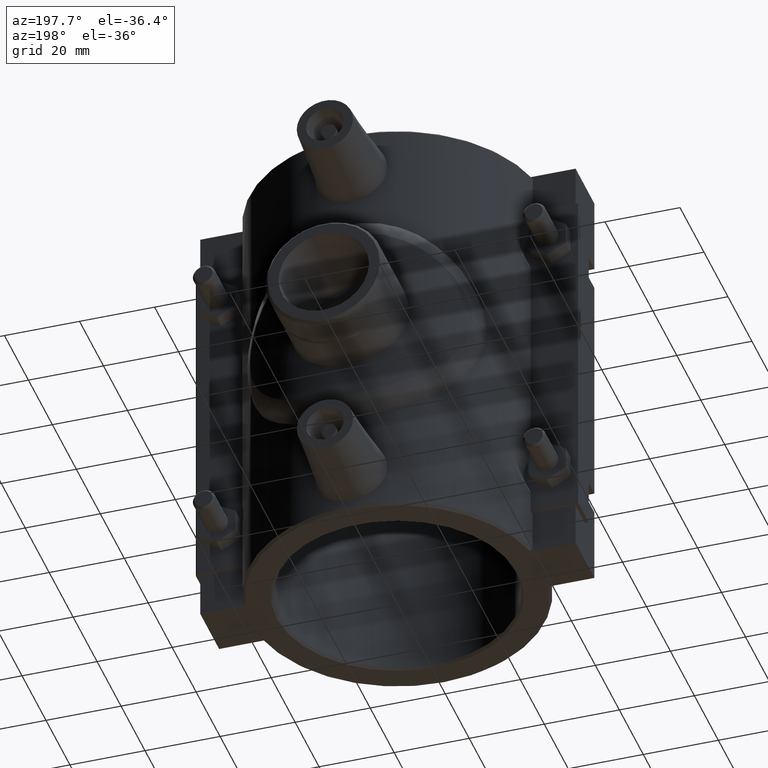
[diagram: clean part render]
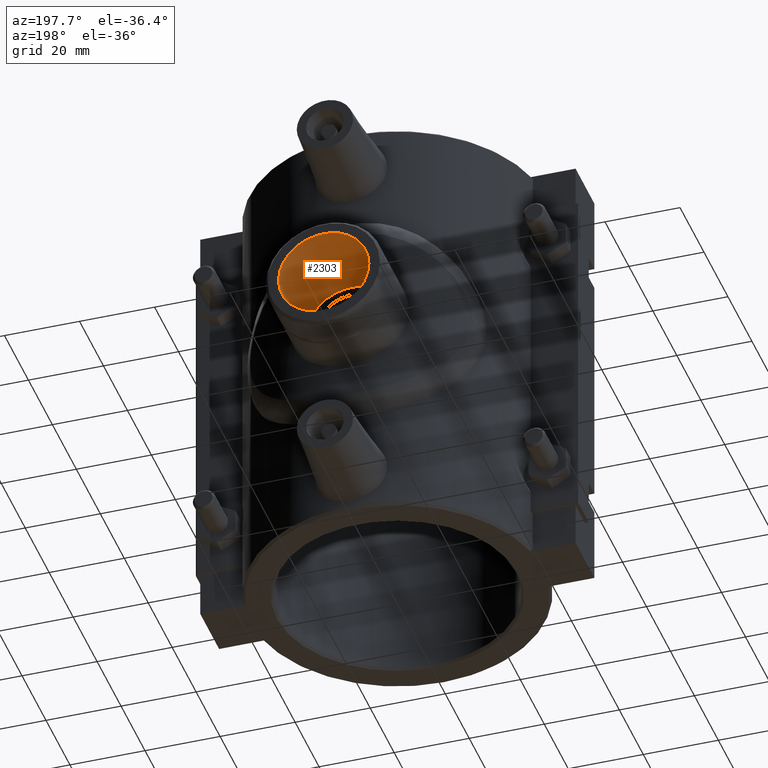
[diagram: same view with one face highlighted and labeled with its STEP entity id]
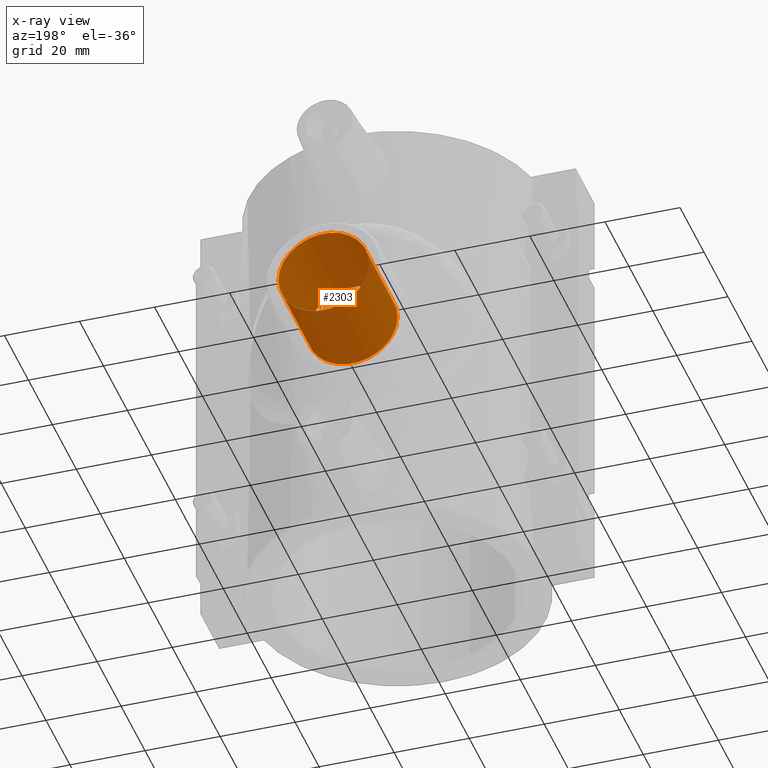
[diagram: x-ray of the same camera — body ghosted, the highlighted face saturated]
A machine part, auxiliary view. The second image highlights one B-rep face of the part: STEP entity #2303.
The next image is the same camera in x-ray: the body ghosted, the highlighted face saturated — about 0% of this face is hidden behind the body in this view.
In plain terms, the highlighted cylindrical surface (bore or boss wall) has radius 12.0585 mm, axis along (0, -1, 0).
Its self-contained STEP definition (entity closure, byte-faithful):
#78=CYLINDRICAL_SURFACE('',#2502,12.0585);
#128=FACE_BOUND('',#452,.T.);
#272=FACE_OUTER_BOUND('',#451,.T.);
#451=EDGE_LOOP('',(#1973));
#452=EDGE_LOOP('',(#1974));
#934=CIRCLE('',#2492,12.0585);
#939=CIRCLE('',#2503,12.0585);
#1139=VERTEX_POINT('',#4229);
#1145=VERTEX_POINT('',#4304);
#1431=EDGE_CURVE('',#1139,#1139,#934,.T.);
#1437=EDGE_CURVE('',#1145,#1145,#939,.T.);
#1973=ORIENTED_EDGE('',*,*,#1437,.T.);
#1974=ORIENTED_EDGE('',*,*,#1431,.F.);
#2303=ADVANCED_FACE('',(#272,#128),#78,.F.);
#2492=AXIS2_PLACEMENT_3D('',#4230,#3019,#3020);
#2502=AXIS2_PLACEMENT_3D('',#4303,#3039,#3040);
#2503=AXIS2_PLACEMENT_3D('',#4305,#3041,#3042);
#3019=DIRECTION('center_axis',(0.,-1.,0.));
#3020=DIRECTION('ref_axis',(-1.,0.,0.));
#3039=DIRECTION('center_axis',(0.,-1.,0.));
#3040=DIRECTION('ref_axis',(-1.,0.,0.));
#3041=DIRECTION('center_axis',(0.,-1.,0.));
#3042=DIRECTION('ref_axis',(-1.,0.,0.));
#4229=CARTESIAN_POINT('',(12.0585,61.5,-1.47674034275184E-15));
#4230=CARTESIAN_POINT('Origin',(0.,61.5,0.));
#4303=CARTESIAN_POINT('Origin',(0.,61.5,0.));
#4304=CARTESIAN_POINT('',(12.0585,37.5,-1.47674034275184E-15));
#4305=CARTESIAN_POINT('Origin',(0.,37.5,0.));